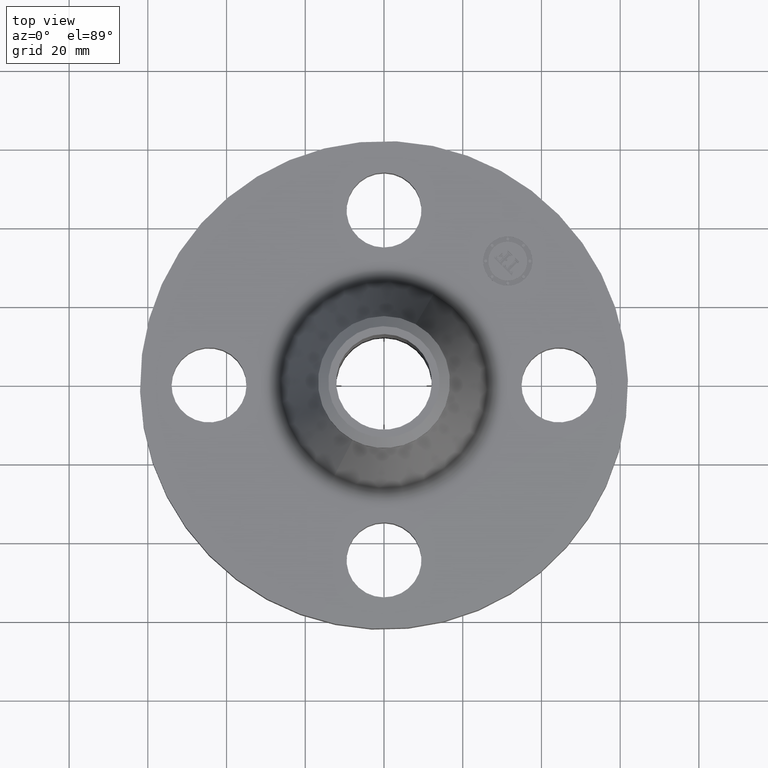
[diagram: clean part render]
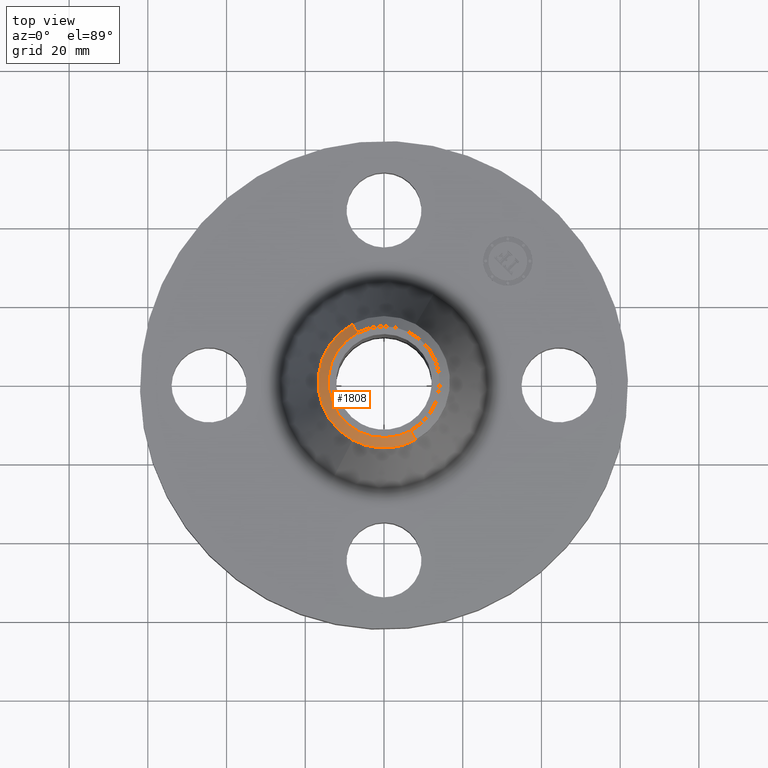
[diagram: same view with one face highlighted and labeled with its STEP entity id]
A machine part, top view. The second image highlights one B-rep face of the part: STEP entity #1808.
In plain terms, the highlighted conical surface has half-angle 52.5 deg.
Its self-contained STEP definition (entity closure, byte-faithful):
#1130=AXIS2_PLACEMENT_3D('Circle Axis2P3D',#1128,#1129,$) ;
#1175=AXIS2_PLACEMENT_3D('Circle Axis2P3D',#1173,#1174,$) ;
#1767=AXIS2_PLACEMENT_3D('Circle Axis2P3D',#1765,#1766,$) ;
#1789=AXIS2_PLACEMENT_3D('Cone Axis2P3D',#1786,#1787,#1788) ;
#1125=CARTESIAN_POINT('Vertex',(-0.31642085548,-0.57920449085,2.30114959956)) ;
#1128=CARTESIAN_POINT('Axis2P3D Location',(0.,0.,2.30114959956)) ;
#1132=CARTESIAN_POINT('Vertex',(-0.31642085548,0.57920449085,2.30114959956)) ;
#1170=CARTESIAN_POINT('Vertex',(0.316420855481,-0.579204490851,2.30114959956)) ;
#1173=CARTESIAN_POINT('Axis2P3D Location',(0.,0.,2.30114959956)) ;
#1760=CARTESIAN_POINT('Vertex',(0.267155162633,-0.489024244991,2.38000000001)) ;
#1762=CARTESIAN_POINT('Vertex',(-0.267155162633,0.489024244991,2.38000000001)) ;
#1765=CARTESIAN_POINT('Axis2P3D Location',(3.08536048853E-011,2.84245068427E-012,2.38000000001)) ;
#1786=CARTESIAN_POINT('Axis2P3D Location',(0.,0.,2.38000000001)) ;
#1791=CARTESIAN_POINT('Line Origine',(0.291788009054,-0.534114367917,2.34057479979)) ;
#1796=CARTESIAN_POINT('Line Origine',(-0.291788009054,0.534114367917,2.34057479979)) ;
#1129=DIRECTION('Axis2P3D Direction',(-0.,0.,-0.0393700787402)) ;
#1174=DIRECTION('Axis2P3D Direction',(-0.,0.,-0.0393700787402)) ;
#1766=DIRECTION('Axis2P3D Direction',(0.,0.,-0.0393700787402)) ;
#1787=DIRECTION('Axis2P3D Direction',(-0.,-0.,-0.0393700787402)) ;
#1788=DIRECTION('Axis2P3D XDirection',(0.0188750212049,-0.0345504945626,0.)) ;
#1792=DIRECTION('Vector Direction',(0.014974561121,-0.02741075027,-0.023966985394)) ;
#1797=DIRECTION('Vector Direction',(-0.014974561121,0.02741075027,-0.023966985394)) ;
#1793=VECTOR('Line Direction',#1792,0.0393700787402) ;
#1798=VECTOR('Line Direction',#1797,0.0393700787402) ;
#1802=ORIENTED_EDGE('',*,*,#1795,.F.) ;
#1803=ORIENTED_EDGE('',*,*,#1769,.F.) ;
#1804=ORIENTED_EDGE('',*,*,#1800,.T.) ;
#1805=ORIENTED_EDGE('',*,*,#1134,.T.) ;
#1806=ORIENTED_EDGE('',*,*,#1177,.F.) ;
#1808=ADVANCED_FACE('PartBody',(#1807),#1790,.T.) ;
#1131=CIRCLE('generated circle',#1130,0.660000000003) ;
#1176=CIRCLE('generated circle',#1175,0.660000000003) ;
#1768=CIRCLE('generated circle',#1767,0.557240157504) ;
#1790=CONICAL_SURFACE('Cone',#1789,0.557240157482,0.916297857297) ;
#1134=EDGE_CURVE('',#1133,#1126,#1131,.F.) ;
#1177=EDGE_CURVE('',#1171,#1126,#1176,.T.) ;
#1769=EDGE_CURVE('',#1763,#1761,#1768,.F.) ;
#1795=EDGE_CURVE('',#1761,#1171,#1794,.T.) ;
#1800=EDGE_CURVE('',#1763,#1133,#1799,.T.) ;
#1801=EDGE_LOOP('',(#1802,#1803,#1804,#1805,#1806)) ;
#1807=FACE_OUTER_BOUND('',#1801,.T.) ;
#1794=LINE('Line',#1791,#1793) ;
#1799=LINE('Line',#1796,#1798) ;
#1126=VERTEX_POINT('',#1125) ;
#1133=VERTEX_POINT('',#1132) ;
#1171=VERTEX_POINT('',#1170) ;
#1761=VERTEX_POINT('',#1760) ;
#1763=VERTEX_POINT('',#1762) ;